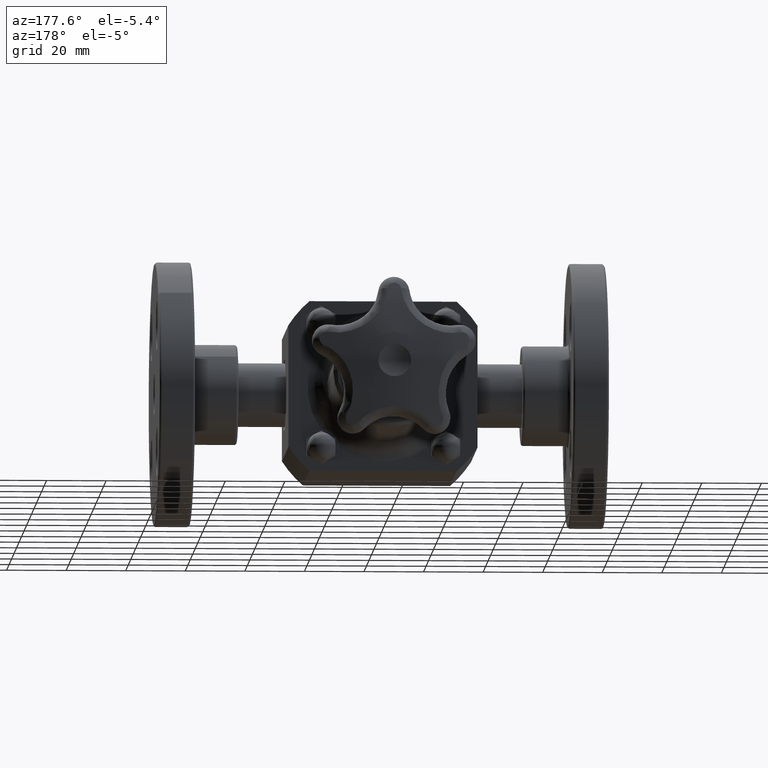
[diagram: clean part render]
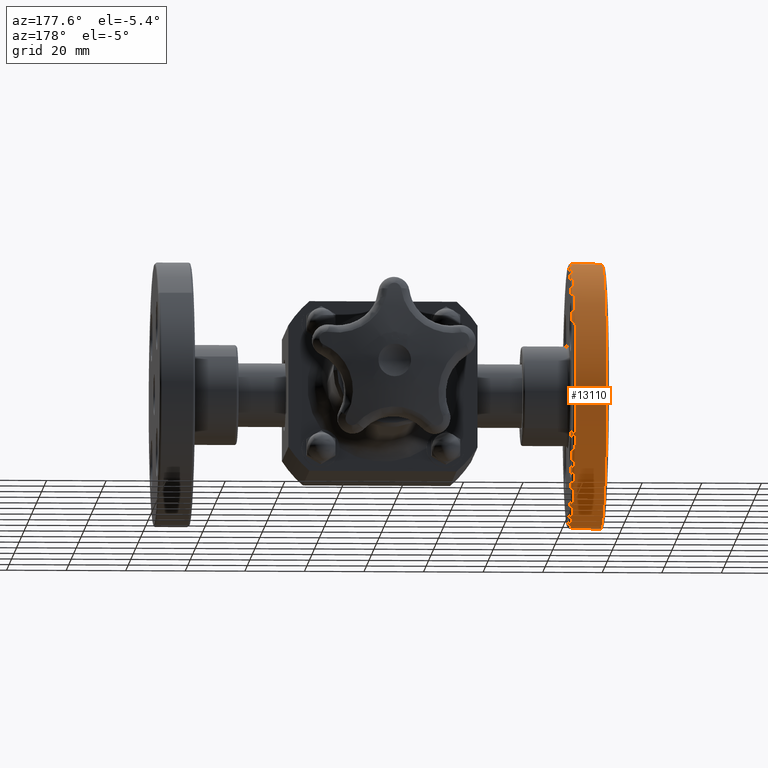
[diagram: same view with one face highlighted and labeled with its STEP entity id]
A machine part, auxiliary view. The second image highlights one B-rep face of the part: STEP entity #13110.
In plain terms, the highlighted cylindrical surface (bore or boss wall) has radius 44.45 mm, axis along (1, -0, -0).
Its self-contained STEP definition (entity closure, byte-faithful):
#13079=CARTESIAN_POINT('',(-2.940000000000000,1.977436867076458,-1.237436867076428));
#13080=VERTEX_POINT('',#13079);
#13081=CARTESIAN_POINT('',(-2.940000000000000,0.739999999999999,2.996615E-014));
#13082=DIRECTION('',(-1.0,-1.860345E-016,1.860345E-016));
#13083=DIRECTION('',(2.630925E-016,-0.707106781186548,0.707106781186547));
#13084=AXIS2_PLACEMENT_3D('',#13081,#13082,#13083);
#13085=CIRCLE('',#13084,1.750000000000000);
#13086=EDGE_CURVE('',#13080,#13080,#13085,.T.);
#13091=CARTESIAN_POINT('',(-2.735000000000000,0.739999999999999,2.988988E-014));
#13092=DIRECTION('',(1.0,-3.695007E-032,-3.720690E-016));
#13093=DIRECTION('',(-2.630925E-016,0.707106781186548,-0.707106781186547));
#13094=AXIS2_PLACEMENT_3D('',#13091,#13092,#13093);
#13095=CYLINDRICAL_SURFACE('',#13094,1.750000000000000);
#13096=CARTESIAN_POINT('',(-2.530000000000001,1.977436867076458,-1.237436867076428));
#13097=VERTEX_POINT('',#13096);
#13098=CARTESIAN_POINT('',(-2.530000000000000,0.739999999999999,2.981360E-014));
#13099=DIRECTION('',(1.0,1.860345E-016,-1.860345E-016));
#13100=DIRECTION('',(2.630925E-016,-0.707106781186548,0.707106781186547));
#13101=AXIS2_PLACEMENT_3D('',#13098,#13099,#13100);
#13102=CIRCLE('',#13101,1.750000000000000);
#13103=EDGE_CURVE('',#13097,#13097,#13102,.T.);
#13104=ORIENTED_EDGE('',*,*,#13103,.F.);
#13105=EDGE_LOOP('',(#13104));
#13106=FACE_OUTER_BOUND('',#13105,.T.);
#13107=ORIENTED_EDGE('',*,*,#13086,.F.);
#13108=EDGE_LOOP('',(#13107));
#13109=FACE_BOUND('',#13108,.T.);
#13110=ADVANCED_FACE('',(#13106,#13109),#13095,.T.);